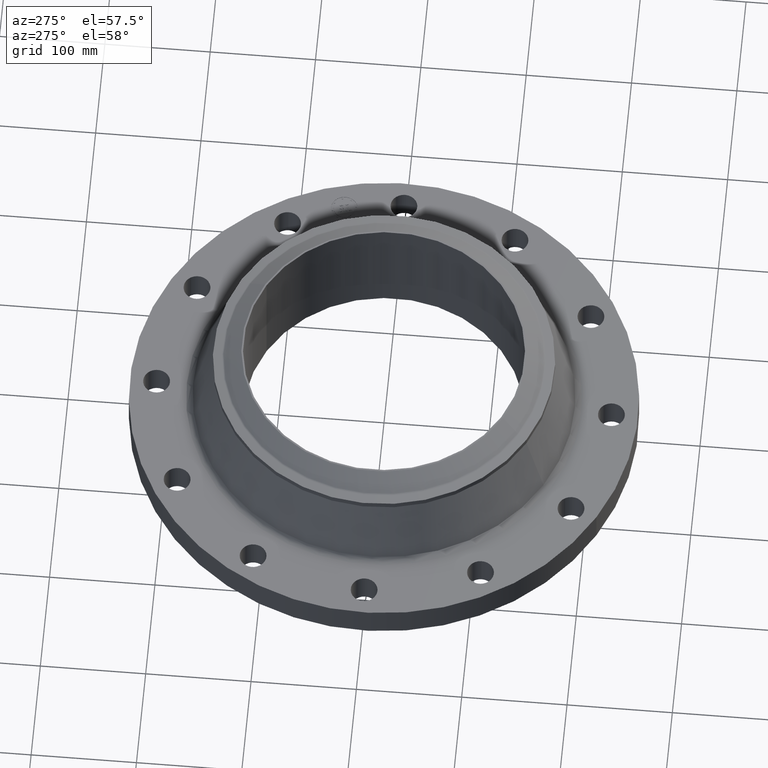
[diagram: clean part render]
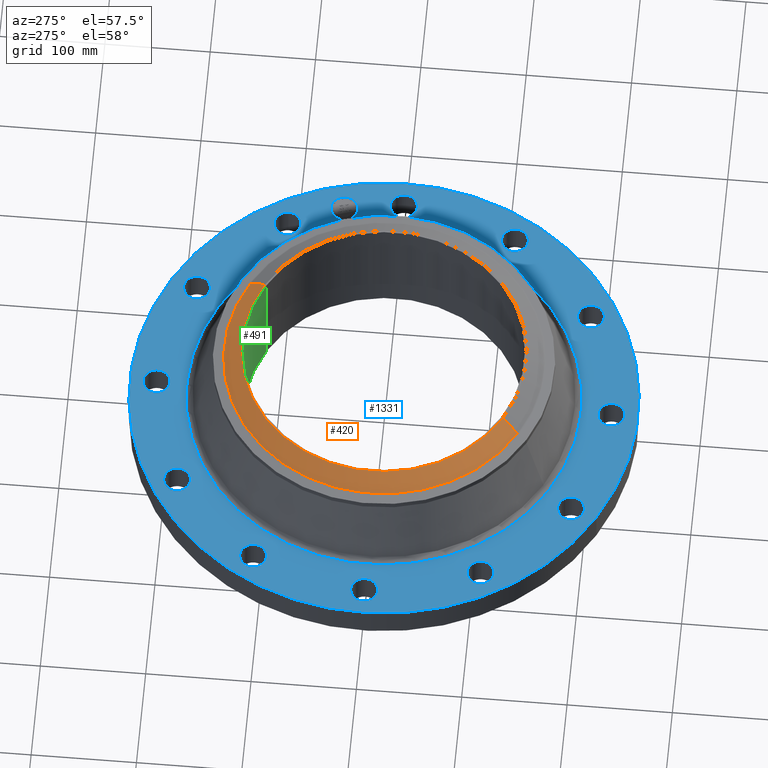
[diagram: same view with three faces highlighted in distinct colors, each labeled with its STEP entity id]
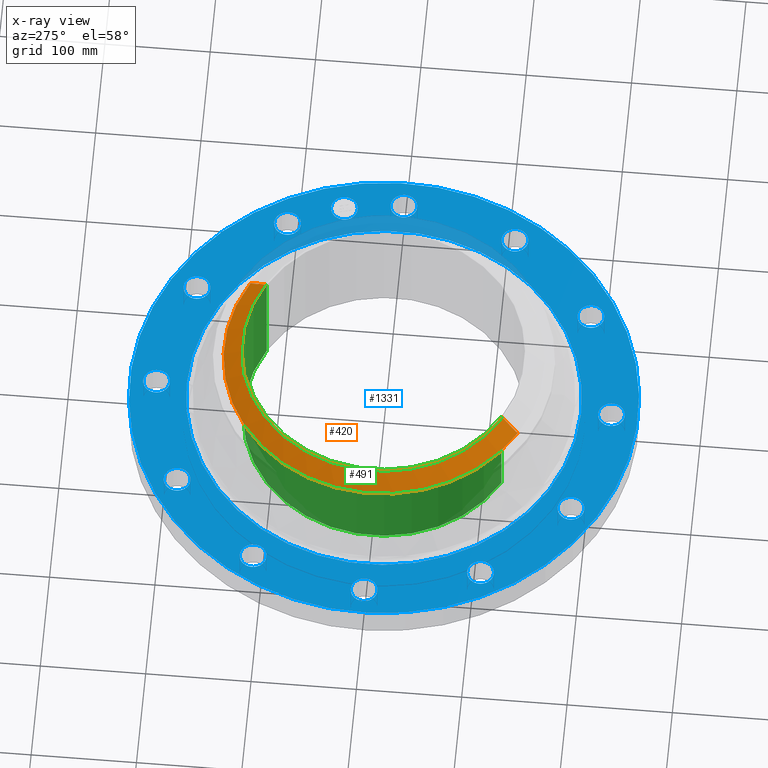
[diagram: x-ray of the same camera — body ghosted, the three highlighted faces saturated]
A machine part, auxiliary view with three faces highlighted in distinct colors.
The next image is the same camera in x-ray (body ghosted, the three faces saturated) — at least one of them is partly hidden behind the body in this view.
Their STEP definitions:

[orange] entity #420 — the highlighted conical surface has half-angle 52.5 deg.
#368=AXIS2_PLACEMENT_3D('Circle Axis2P3D',#366,#367,$) ;
#381=AXIS2_PLACEMENT_3D('Cone Axis2P3D',#378,#379,#380) ;
#411=AXIS2_PLACEMENT_3D('Circle Axis2P3D',#409,#410,$) ;
#344=CARTESIAN_POINT('Vertex',(-2.86491923219,-5.24419947822,3.99108306753)) ;
#351=CARTESIAN_POINT('Vertex',(2.86491923219,5.24419947822,3.99108306753)) ;
#366=CARTESIAN_POINT('Axis2P3D Location',(0.,0.,3.99108306753)) ;
#378=CARTESIAN_POINT('Axis2P3D Location',(0.,0.,4.50000000002)) ;
#383=CARTESIAN_POINT('Line Origine',(-2.70593370302,-4.95317841914,4.24554153377)) ;
#387=CARTESIAN_POINT('Vertex',(-2.54694817384,-4.66215736006,4.50000000002)) ;
#390=CARTESIAN_POINT('Line Origine',(2.70593370302,4.95317841914,4.24554153377)) ;
#394=CARTESIAN_POINT('Vertex',(2.54694817384,4.66215736006,4.50000000002)) ;
#409=CARTESIAN_POINT('Axis2P3D Location',(0.,0.,4.50000000002)) ;
#367=DIRECTION('Axis2P3D Direction',(0.,-0.,-0.0393700787402)) ;
#379=DIRECTION('Axis2P3D Direction',(-0.,-0.,-0.0393700787402)) ;
#380=DIRECTION('Axis2P3D XDirection',(-0.0188750212049,-0.0345504945626,0.)) ;
#384=DIRECTION('Vector Direction',(-0.014974561121,-0.02741075027,-0.023966985394)) ;
#391=DIRECTION('Vector Direction',(0.014974561121,0.02741075027,-0.023966985394)) ;
#410=DIRECTION('Axis2P3D Direction',(0.,-0.,-0.0393700787402)) ;
#385=VECTOR('Line Direction',#384,0.0393700787402) ;
#392=VECTOR('Line Direction',#391,0.0393700787402) ;
#415=ORIENTED_EDGE('',*,*,#396,.T.) ;
#416=ORIENTED_EDGE('',*,*,#370,.F.) ;
#417=ORIENTED_EDGE('',*,*,#389,.F.) ;
#418=ORIENTED_EDGE('',*,*,#413,.T.) ;
#420=ADVANCED_FACE('PartBody',(#419),#382,.T.) ;
#369=CIRCLE('generated circle',#368,5.97573345911) ;
#412=CIRCLE('generated circle',#411,5.31250000002) ;
#382=CONICAL_SURFACE('Cone',#381,5.31250000002,0.916297857297) ;
#370=EDGE_CURVE('',#345,#352,#369,.T.) ;
#389=EDGE_CURVE('',#388,#345,#386,.T.) ;
#396=EDGE_CURVE('',#395,#352,#393,.T.) ;
#413=EDGE_CURVE('',#388,#395,#412,.T.) ;
#414=EDGE_LOOP('',(#415,#416,#417,#418)) ;
#419=FACE_OUTER_BOUND('',#414,.T.) ;
#386=LINE('Line',#383,#385) ;
#393=LINE('Line',#390,#392) ;
#345=VERTEX_POINT('',#344) ;
#352=VERTEX_POINT('',#351) ;
#388=VERTEX_POINT('',#387) ;
#395=VERTEX_POINT('',#394) ;

[blue] entity #1331 — the highlighted planar face has unit normal (0, 0, -1).
#65=AXIS2_PLACEMENT_3D('Circle Axis2P3D',#63,#64,$) ;
#82=AXIS2_PLACEMENT_3D('Circle Axis2P3D',#80,#81,$) ;
#115=AXIS2_PLACEMENT_3D('Circle Axis2P3D',#113,#114,$) ;
#139=AXIS2_PLACEMENT_3D('Circle Axis2P3D',#137,#138,$) ;
#156=AXIS2_PLACEMENT_3D('Circle Axis2P3D',#154,#155,$) ;
#191=AXIS2_PLACEMENT_3D('Circle Axis2P3D',#189,#190,$) ;
#800=AXIS2_PLACEMENT_3D('Circle Axis2P3D',#798,#799,$) ;
#812=AXIS2_PLACEMENT_3D('Circle Axis2P3D',#810,#811,$) ;
#843=AXIS2_PLACEMENT_3D('Circle Axis2P3D',#841,#842,$) ;
#855=AXIS2_PLACEMENT_3D('Circle Axis2P3D',#853,#854,$) ;
#886=AXIS2_PLACEMENT_3D('Circle Axis2P3D',#884,#885,$) ;
#898=AXIS2_PLACEMENT_3D('Circle Axis2P3D',#896,#897,$) ;
#929=AXIS2_PLACEMENT_3D('Circle Axis2P3D',#927,#928,$) ;
#941=AXIS2_PLACEMENT_3D('Circle Axis2P3D',#939,#940,$) ;
#972=AXIS2_PLACEMENT_3D('Circle Axis2P3D',#970,#971,$) ;
#984=AXIS2_PLACEMENT_3D('Circle Axis2P3D',#982,#983,$) ;
#1015=AXIS2_PLACEMENT_3D('Circle Axis2P3D',#1013,#1014,$) ;
#1027=AXIS2_PLACEMENT_3D('Circle Axis2P3D',#1025,#1026,$) ;
#1058=AXIS2_PLACEMENT_3D('Circle Axis2P3D',#1056,#1057,$) ;
#1070=AXIS2_PLACEMENT_3D('Circle Axis2P3D',#1068,#1069,$) ;
#1101=AXIS2_PLACEMENT_3D('Circle Axis2P3D',#1099,#1100,$) ;
#1113=AXIS2_PLACEMENT_3D('Circle Axis2P3D',#1111,#1112,$) ;
#1144=AXIS2_PLACEMENT_3D('Circle Axis2P3D',#1142,#1143,$) ;
#1156=AXIS2_PLACEMENT_3D('Circle Axis2P3D',#1154,#1155,$) ;
#1187=AXIS2_PLACEMENT_3D('Circle Axis2P3D',#1185,#1186,$) ;
#1199=AXIS2_PLACEMENT_3D('Circle Axis2P3D',#1197,#1198,$) ;
#1230=AXIS2_PLACEMENT_3D('Circle Axis2P3D',#1228,#1229,$) ;
#1242=AXIS2_PLACEMENT_3D('Circle Axis2P3D',#1240,#1241,$) ;
#1255=AXIS2_PLACEMENT_3D('Plane Axis2P3D',#1252,#1253,#1254) ;
#1315=AXIS2_PLACEMENT_3D('Circle Axis2P3D',#1313,#1314,$) ;
#1324=AXIS2_PLACEMENT_3D('Circle Axis2P3D',#1322,#1323,$) ;
#46=CARTESIAN_POINT('Vertex',(8.06120871909,0.239712769303,1.25000000001)) ;
#60=CARTESIAN_POINT('Vertex',(8.93879128098,-0.239712769303,1.25000000001)) ;
#63=CARTESIAN_POINT('Axis2P3D Location',(8.50000000003,0.,1.25000000001)) ;
#80=CARTESIAN_POINT('Axis2P3D Location',(8.50000000003,0.,1.25000000001)) ;
#110=CARTESIAN_POINT('Vertex',(-4.55454261676,-8.33703433799,1.25000000001)) ;
#113=CARTESIAN_POINT('Axis2P3D Location',(0.,0.,1.25000000001)) ;
#117=CARTESIAN_POINT('Vertex',(4.55454261676,8.33703433799,1.25000000001)) ;
#137=CARTESIAN_POINT('Axis2P3D Location',(0.,0.,1.25000000001)) ;
#154=CARTESIAN_POINT('Axis2P3D Location',(0.,0.,1.25000000001)) ;
#158=CARTESIAN_POINT('Vertex',(3.53317696886,6.46743706013,1.25000000001)) ;
#160=CARTESIAN_POINT('Vertex',(-3.53317696886,-6.46743706013,1.25000000001)) ;
#189=CARTESIAN_POINT('Axis2P3D Location',(0.,0.,1.25000000001)) ;
#788=CARTESIAN_POINT('Vertex',(-7.10106792059,3.82300701172,1.25000000001)) ;
#795=CARTESIAN_POINT('Vertex',(-7.6213639438,4.67699298832,1.25000000001)) ;
#798=CARTESIAN_POINT('Axis2P3D Location',(-7.3612159322,4.25000000002,1.25000000001)) ;
#810=CARTESIAN_POINT('Axis2P3D Location',(-7.3612159322,4.25000000002,1.25000000001)) ;
#831=CARTESIAN_POINT('Vertex',(4.23820170737,-6.86135515129,1.25000000001)) ;
#838=CARTESIAN_POINT('Vertex',(4.26179829266,-7.86107671311,1.25000000001)) ;
#841=CARTESIAN_POINT('Axis2P3D Location',(4.25000000002,-7.3612159322,1.25000000001)) ;
#853=CARTESIAN_POINT('Axis2P3D Location',(4.25000000002,-7.3612159322,1.25000000001)) ;
#874=CARTESIAN_POINT('Vertex',(-4.23820170737,6.86135515129,1.25000000001)) ;
#881=CARTESIAN_POINT('Vertex',(-4.26179829266,7.86107671311,1.25000000001)) ;
#884=CARTESIAN_POINT('Axis2P3D Location',(-4.25000000002,7.3612159322,1.25000000001)) ;
#896=CARTESIAN_POINT('Axis2P3D Location',(-4.25000000002,7.3612159322,1.25000000001)) ;
#917=CARTESIAN_POINT('Vertex',(0.239712769303,-8.06120871909,1.25000000001)) ;
#924=CARTESIAN_POINT('Vertex',(-0.239712769303,-8.93879128098,1.25000000001)) ;
#927=CARTESIAN_POINT('Axis2P3D Location',(-5.98490048565E-016,-8.50000000003,1.25000000001)) ;
#939=CARTESIAN_POINT('Axis2P3D Location',(-5.98490048565E-016,-8.50000000003,1.25000000001)) ;
#960=CARTESIAN_POINT('Vertex',(-0.239712769303,8.06120871909,1.25000000001)) ;
#967=CARTESIAN_POINT('Vertex',(0.239712769303,8.93879128098,1.25000000001)) ;
#970=CARTESIAN_POINT('Axis2P3D Location',(-4.42459730714E-016,8.50000000003,1.25000000001)) ;
#982=CARTESIAN_POINT('Axis2P3D Location',(-4.42459730714E-016,8.50000000003,1.25000000001)) ;
#1003=CARTESIAN_POINT('Vertex',(-3.82300701172,-7.10106792059,1.25000000001)) ;
#1010=CARTESIAN_POINT('Vertex',(-4.67699298832,-7.6213639438,1.25000000001)) ;
#1013=CARTESIAN_POINT('Axis2P3D Location',(-4.25000000002,-7.3612159322,1.25000000001)) ;
#1025=CARTESIAN_POINT('Axis2P3D Location',(-4.25000000002,-7.3612159322,1.25000000001)) ;
#1046=CARTESIAN_POINT('Vertex',(3.82300701172,7.10106792059,1.25000000001)) ;
#1053=CARTESIAN_POINT('Vertex',(4.67699298832,7.6213639438,1.25000000001)) ;
#1056=CARTESIAN_POINT('Axis2P3D Location',(4.25000000002,7.3612159322,1.25000000001)) ;
#1068=CARTESIAN_POINT('Axis2P3D Location',(4.25000000002,7.3612159322,1.25000000001)) ;
#1089=CARTESIAN_POINT('Vertex',(-6.86135515129,-4.23820170737,1.25000000001)) ;
#1096=CARTESIAN_POINT('Vertex',(-7.86107671311,-4.26179829266,1.25000000001)) ;
#1099=CARTESIAN_POINT('Axis2P3D Location',(-7.3612159322,-4.25000000002,1.25000000001)) ;
#1111=CARTESIAN_POINT('Axis2P3D Location',(-7.3612159322,-4.25000000002,1.25000000001)) ;
#1132=CARTESIAN_POINT('Vertex',(6.86135515129,4.23820170737,1.25000000001)) ;
#1139=CARTESIAN_POINT('Vertex',(7.86107671311,4.26179829266,1.25000000001)) ;
#1142=CARTESIAN_POINT('Axis2P3D Location',(7.3612159322,4.25000000002,1.25000000001)) ;
#1154=CARTESIAN_POINT('Axis2P3D Location',(7.3612159322,4.25000000002,1.25000000001)) ;
#1175=CARTESIAN_POINT('Vertex',(-8.06120871909,-0.239712769303,1.25000000001)) ;
#1182=CARTESIAN_POINT('Vertex',(-8.93879128098,0.239712769303,1.25000000001)) ;
#1185=CARTESIAN_POINT('Axis2P3D Location',(-8.50000000003,-1.04094977928E-015,1.25000000001)) ;
#1197=CARTESIAN_POINT('Axis2P3D Location',(-8.50000000003,-1.04094977928E-015,1.25000000001)) ;
#1218=CARTESIAN_POINT('Vertex',(7.10106792059,-3.82300701172,1.25000000001)) ;
#1225=CARTESIAN_POINT('Vertex',(7.6213639438,-4.67699298832,1.25000000001)) ;
#1228=CARTESIAN_POINT('Axis2P3D Location',(7.3612159322,-4.25000000002,1.25000000001)) ;
#1240=CARTESIAN_POINT('Axis2P3D Location',(7.3612159322,-4.25000000002,1.25000000001)) ;
#1252=CARTESIAN_POINT('Axis2P3D Location',(0.,9.50000000004,1.25000000001)) ;
#1313=CARTESIAN_POINT('Axis2P3D Location',(8.21036952349,2.19996188338,1.25000000001)) ;
#1317=CARTESIAN_POINT('Vertex',(8.08096029755,2.68292368957,1.25000000001)) ;
#1319=CARTESIAN_POINT('Vertex',(8.33977874943,1.71700007719,1.25000000001)) ;
#1322=CARTESIAN_POINT('Axis2P3D Location',(8.21036952349,2.19996188338,1.25000000001)) ;
#64=DIRECTION('Axis2P3D Direction',(0.,-0.,-0.0393700787402)) ;
#81=DIRECTION('Axis2P3D Direction',(0.,-0.,-0.0393700787402)) ;
#114=DIRECTION('Axis2P3D Direction',(0.,0.,-0.0393700787402)) ;
#138=DIRECTION('Axis2P3D Direction',(0.,0.,-0.0393700787402)) ;
#155=DIRECTION('Axis2P3D Direction',(0.,0.,-0.0393700787402)) ;
#190=DIRECTION('Axis2P3D Direction',(0.,0.,-0.0393700787402)) ;
#799=DIRECTION('Axis2P3D Direction',(0.,0.,-0.0393700787402)) ;
#811=DIRECTION('Axis2P3D Direction',(0.,0.,-0.0393700787402)) ;
#842=DIRECTION('Axis2P3D Direction',(0.,-0.,-0.0393700787402)) ;
#854=DIRECTION('Axis2P3D Direction',(0.,-0.,-0.0393700787402)) ;
#885=DIRECTION('Axis2P3D Direction',(0.,0.,-0.0393700787402)) ;
#897=DIRECTION('Axis2P3D Direction',(0.,0.,-0.0393700787402)) ;
#928=DIRECTION('Axis2P3D Direction',(0.,-0.,-0.0393700787402)) ;
#940=DIRECTION('Axis2P3D Direction',(0.,-0.,-0.0393700787402)) ;
#971=DIRECTION('Axis2P3D Direction',(0.,0.,-0.0393700787402)) ;
#983=DIRECTION('Axis2P3D Direction',(0.,0.,-0.0393700787402)) ;
#1014=DIRECTION('Axis2P3D Direction',(-0.,0.,-0.0393700787402)) ;
#1026=DIRECTION('Axis2P3D Direction',(-0.,0.,-0.0393700787402)) ;
#1057=DIRECTION('Axis2P3D Direction',(0.,0.,-0.0393700787402)) ;
#1069=DIRECTION('Axis2P3D Direction',(0.,0.,-0.0393700787402)) ;
#1100=DIRECTION('Axis2P3D Direction',(-0.,0.,-0.0393700787402)) ;
#1112=DIRECTION('Axis2P3D Direction',(-0.,0.,-0.0393700787402)) ;
#1143=DIRECTION('Axis2P3D Direction',(0.,0.,-0.0393700787402)) ;
#1155=DIRECTION('Axis2P3D Direction',(0.,0.,-0.0393700787402)) ;
#1186=DIRECTION('Axis2P3D Direction',(-0.,0.,-0.0393700787402)) ;
#1198=DIRECTION('Axis2P3D Direction',(-0.,0.,-0.0393700787402)) ;
#1229=DIRECTION('Axis2P3D Direction',(0.,-0.,-0.0393700787402)) ;
#1241=DIRECTION('Axis2P3D Direction',(0.,-0.,-0.0393700787402)) ;
#1253=DIRECTION('Axis2P3D Direction',(0.,0.,-0.0393700787402)) ;
#1254=DIRECTION('Axis2P3D XDirection',(0.0393700787402,0.,0.)) ;
#1314=DIRECTION('Axis2P3D Direction',(0.,0.,-0.0393700787402)) ;
#1323=DIRECTION('Axis2P3D Direction',(0.,0.,-0.0393700787402)) ;
#1258=ORIENTED_EDGE('',*,*,#141,.F.) ;
#1259=ORIENTED_EDGE('',*,*,#119,.F.) ;
#1262=ORIENTED_EDGE('',*,*,#67,.T.) ;
#1263=ORIENTED_EDGE('',*,*,#84,.T.) ;
#1266=ORIENTED_EDGE('',*,*,#193,.T.) ;
#1267=ORIENTED_EDGE('',*,*,#162,.T.) ;
#1270=ORIENTED_EDGE('',*,*,#1244,.T.) ;
#1271=ORIENTED_EDGE('',*,*,#1232,.T.) ;
#1274=ORIENTED_EDGE('',*,*,#857,.T.) ;
#1275=ORIENTED_EDGE('',*,*,#845,.T.) ;
#1278=ORIENTED_EDGE('',*,*,#943,.T.) ;
#1279=ORIENTED_EDGE('',*,*,#931,.T.) ;
#1282=ORIENTED_EDGE('',*,*,#1029,.T.) ;
#1283=ORIENTED_EDGE('',*,*,#1017,.T.) ;
#1286=ORIENTED_EDGE('',*,*,#1115,.T.) ;
#1287=ORIENTED_EDGE('',*,*,#1103,.T.) ;
#1290=ORIENTED_EDGE('',*,*,#1201,.T.) ;
#1291=ORIENTED_EDGE('',*,*,#1189,.T.) ;
#1294=ORIENTED_EDGE('',*,*,#814,.T.) ;
#1295=ORIENTED_EDGE('',*,*,#802,.T.) ;
#1298=ORIENTED_EDGE('',*,*,#900,.T.) ;
#1299=ORIENTED_EDGE('',*,*,#888,.T.) ;
#1302=ORIENTED_EDGE('',*,*,#986,.T.) ;
#1303=ORIENTED_EDGE('',*,*,#974,.T.) ;
#1306=ORIENTED_EDGE('',*,*,#1072,.T.) ;
#1307=ORIENTED_EDGE('',*,*,#1060,.T.) ;
#1310=ORIENTED_EDGE('',*,*,#1158,.T.) ;
#1311=ORIENTED_EDGE('',*,*,#1146,.T.) ;
#1328=ORIENTED_EDGE('',*,*,#1321,.T.) ;
#1329=ORIENTED_EDGE('',*,*,#1326,.T.) ;
#1264=FACE_BOUND('',#1261,.T.) ;
#1268=FACE_BOUND('',#1265,.T.) ;
#1272=FACE_BOUND('',#1269,.T.) ;
#1276=FACE_BOUND('',#1273,.T.) ;
#1280=FACE_BOUND('',#1277,.T.) ;
#1284=FACE_BOUND('',#1281,.T.) ;
#1288=FACE_BOUND('',#1285,.T.) ;
#1292=FACE_BOUND('',#1289,.T.) ;
#1296=FACE_BOUND('',#1293,.T.) ;
#1300=FACE_BOUND('',#1297,.T.) ;
#1304=FACE_BOUND('',#1301,.T.) ;
#1308=FACE_BOUND('',#1305,.T.) ;
#1312=FACE_BOUND('',#1309,.T.) ;
#1330=FACE_BOUND('',#1327,.T.) ;
#1331=ADVANCED_FACE('PartBody',(#1260,#1264,#1268,#1272,#1276,#1280,#1284,#1288,#1292,#1296,#1300,#1304,#1308,#1312,#1330),#1256,.F.) ;
#66=CIRCLE('generated circle',#65,0.500000000002) ;
#83=CIRCLE('generated circle',#82,0.500000000002) ;
#116=CIRCLE('generated circle',#115,9.50000000004) ;
#140=CIRCLE('generated circle',#139,9.50000000004) ;
#157=CIRCLE('generated circle',#156,7.36960525538) ;
#192=CIRCLE('generated circle',#191,7.36960525538) ;
#801=CIRCLE('generated circle',#800,0.500000000002) ;
#813=CIRCLE('generated circle',#812,0.500000000002) ;
#844=CIRCLE('generated circle',#843,0.500000000002) ;
#856=CIRCLE('generated circle',#855,0.500000000002) ;
#887=CIRCLE('generated circle',#886,0.500000000002) ;
#899=CIRCLE('generated circle',#898,0.500000000002) ;
#930=CIRCLE('generated circle',#929,0.500000000002) ;
#942=CIRCLE('generated circle',#941,0.500000000002) ;
#973=CIRCLE('generated circle',#972,0.500000000002) ;
#985=CIRCLE('generated circle',#984,0.500000000002) ;
#1016=CIRCLE('generated circle',#1015,0.500000000002) ;
#1028=CIRCLE('generated circle',#1027,0.500000000002) ;
#1059=CIRCLE('generated circle',#1058,0.500000000002) ;
#1071=CIRCLE('generated circle',#1070,0.500000000002) ;
#1102=CIRCLE('generated circle',#1101,0.500000000002) ;
#1114=CIRCLE('generated circle',#1113,0.500000000002) ;
#1145=CIRCLE('generated circle',#1144,0.500000000002) ;
#1157=CIRCLE('generated circle',#1156,0.500000000002) ;
#1188=CIRCLE('generated circle',#1187,0.500000000002) ;
#1200=CIRCLE('generated circle',#1199,0.500000000002) ;
#1231=CIRCLE('generated circle',#1230,0.500000000002) ;
#1243=CIRCLE('generated circle',#1242,0.500000000002) ;
#1316=CIRCLE('generated circle',#1315,0.499998853999) ;
#1325=CIRCLE('generated circle',#1324,0.499998853999) ;
#67=EDGE_CURVE('',#47,#61,#66,.T.) ;
#84=EDGE_CURVE('',#61,#47,#83,.T.) ;
#119=EDGE_CURVE('',#111,#118,#116,.T.) ;
#141=EDGE_CURVE('',#118,#111,#140,.T.) ;
#162=EDGE_CURVE('',#159,#161,#157,.T.) ;
#193=EDGE_CURVE('',#161,#159,#192,.T.) ;
#802=EDGE_CURVE('',#789,#796,#801,.T.) ;
#814=EDGE_CURVE('',#796,#789,#813,.T.) ;
#845=EDGE_CURVE('',#832,#839,#844,.T.) ;
#857=EDGE_CURVE('',#839,#832,#856,.T.) ;
#888=EDGE_CURVE('',#875,#882,#887,.T.) ;
#900=EDGE_CURVE('',#882,#875,#899,.T.) ;
#931=EDGE_CURVE('',#918,#925,#930,.T.) ;
#943=EDGE_CURVE('',#925,#918,#942,.T.) ;
#974=EDGE_CURVE('',#961,#968,#973,.T.) ;
#986=EDGE_CURVE('',#968,#961,#985,.T.) ;
#1017=EDGE_CURVE('',#1004,#1011,#1016,.T.) ;
#1029=EDGE_CURVE('',#1011,#1004,#1028,.T.) ;
#1060=EDGE_CURVE('',#1047,#1054,#1059,.T.) ;
#1072=EDGE_CURVE('',#1054,#1047,#1071,.T.) ;
#1103=EDGE_CURVE('',#1090,#1097,#1102,.T.) ;
#1115=EDGE_CURVE('',#1097,#1090,#1114,.T.) ;
#1146=EDGE_CURVE('',#1133,#1140,#1145,.T.) ;
#1158=EDGE_CURVE('',#1140,#1133,#1157,.T.) ;
#1189=EDGE_CURVE('',#1176,#1183,#1188,.T.) ;
#1201=EDGE_CURVE('',#1183,#1176,#1200,.T.) ;
#1232=EDGE_CURVE('',#1219,#1226,#1231,.T.) ;
#1244=EDGE_CURVE('',#1226,#1219,#1243,.T.) ;
#1321=EDGE_CURVE('',#1318,#1320,#1316,.T.) ;
#1326=EDGE_CURVE('',#1320,#1318,#1325,.T.) ;
#1257=EDGE_LOOP('',(#1258,#1259)) ;
#1261=EDGE_LOOP('',(#1262,#1263)) ;
#1265=EDGE_LOOP('',(#1266,#1267)) ;
#1269=EDGE_LOOP('',(#1270,#1271)) ;
#1273=EDGE_LOOP('',(#1274,#1275)) ;
#1277=EDGE_LOOP('',(#1278,#1279)) ;
#1281=EDGE_LOOP('',(#1282,#1283)) ;
#1285=EDGE_LOOP('',(#1286,#1287)) ;
#1289=EDGE_LOOP('',(#1290,#1291)) ;
#1293=EDGE_LOOP('',(#1294,#1295)) ;
#1297=EDGE_LOOP('',(#1298,#1299)) ;
#1301=EDGE_LOOP('',(#1302,#1303)) ;
#1305=EDGE_LOOP('',(#1306,#1307)) ;
#1309=EDGE_LOOP('',(#1310,#1311)) ;
#1327=EDGE_LOOP('',(#1328,#1329)) ;
#1260=FACE_OUTER_BOUND('',#1257,.T.) ;
#1256=PLANE('',#1255) ;
#47=VERTEX_POINT('',#46) ;
#61=VERTEX_POINT('',#60) ;
#111=VERTEX_POINT('',#110) ;
#118=VERTEX_POINT('',#117) ;
#159=VERTEX_POINT('',#158) ;
#161=VERTEX_POINT('',#160) ;
#789=VERTEX_POINT('',#788) ;
#796=VERTEX_POINT('',#795) ;
#832=VERTEX_POINT('',#831) ;
#839=VERTEX_POINT('',#838) ;
#875=VERTEX_POINT('',#874) ;
#882=VERTEX_POINT('',#881) ;
#918=VERTEX_POINT('',#917) ;
#925=VERTEX_POINT('',#924) ;
#961=VERTEX_POINT('',#960) ;
#968=VERTEX_POINT('',#967) ;
#1004=VERTEX_POINT('',#1003) ;
#1011=VERTEX_POINT('',#1010) ;
#1047=VERTEX_POINT('',#1046) ;
#1054=VERTEX_POINT('',#1053) ;
#1090=VERTEX_POINT('',#1089) ;
#1097=VERTEX_POINT('',#1096) ;
#1133=VERTEX_POINT('',#1132) ;
#1140=VERTEX_POINT('',#1139) ;
#1176=VERTEX_POINT('',#1175) ;
#1183=VERTEX_POINT('',#1182) ;
#1219=VERTEX_POINT('',#1218) ;
#1226=VERTEX_POINT('',#1225) ;
#1318=VERTEX_POINT('',#1317) ;
#1320=VERTEX_POINT('',#1319) ;

[green] entity #491 — the highlighted cylindrical surface (partial cylindrical patch) has radius 133.35 mm, axis along (0, 0, -1).
#432=AXIS2_PLACEMENT_3D('Circle Axis2P3D',#430,#431,$) ;
#452=AXIS2_PLACEMENT_3D('Cylinder Axis2P3D',#449,#450,#451) ;
#482=AXIS2_PLACEMENT_3D('Circle Axis2P3D',#480,#481,$) ;
#430=CARTESIAN_POINT('Axis2P3D Location',(0.,0.,4.50000000002)) ;
#434=CARTESIAN_POINT('Vertex',(-2.51698407768,-4.60730844994,4.50000000002)) ;
#436=CARTESIAN_POINT('Vertex',(2.51698407768,4.60730844994,4.50000000002)) ;
#449=CARTESIAN_POINT('Axis2P3D Location',(0.,0.,2.26850000001)) ;
#454=CARTESIAN_POINT('Line Origine',(2.51698407768,4.60730844994,2.21850000001)) ;
#458=CARTESIAN_POINT('Vertex',(2.51698407768,4.60730844994,-0.0630000000003)) ;
#465=CARTESIAN_POINT('Vertex',(-2.51698407768,-4.60730844994,-0.0630000000003)) ;
#468=CARTESIAN_POINT('Line Origine',(-2.51698407768,-4.60730844994,2.21850000001)) ;
#480=CARTESIAN_POINT('Axis2P3D Location',(0.,0.,-0.0630000000003)) ;
#431=DIRECTION('Axis2P3D Direction',(0.,-0.,-0.0393700787402)) ;
#450=DIRECTION('Axis2P3D Direction',(0.,0.,-0.0393700787402)) ;
#451=DIRECTION('Axis2P3D XDirection',(-0.0188750212049,-0.0345504945626,0.)) ;
#455=DIRECTION('Vector Direction',(0.,0.,-0.0393700787402)) ;
#469=DIRECTION('Vector Direction',(0.,0.,-0.0393700787402)) ;
#481=DIRECTION('Axis2P3D Direction',(0.,0.,-0.0393700787402)) ;
#456=VECTOR('Line Direction',#455,0.0393700787402) ;
#470=VECTOR('Line Direction',#469,0.0393700787402) ;
#486=ORIENTED_EDGE('',*,*,#472,.T.) ;
#487=ORIENTED_EDGE('',*,*,#484,.T.) ;
#488=ORIENTED_EDGE('',*,*,#460,.F.) ;
#489=ORIENTED_EDGE('',*,*,#438,.F.) ;
#491=ADVANCED_FACE('PartBody',(#490),#453,.F.) ;
#433=CIRCLE('generated circle',#432,5.25000000002) ;
#483=CIRCLE('generated circle',#482,5.25000000002) ;
#453=CYLINDRICAL_SURFACE('generated cylinder',#452,5.25000000002) ;
#438=EDGE_CURVE('',#435,#437,#433,.T.) ;
#460=EDGE_CURVE('',#437,#459,#457,.T.) ;
#472=EDGE_CURVE('',#435,#466,#471,.T.) ;
#484=EDGE_CURVE('',#466,#459,#483,.T.) ;
#485=EDGE_LOOP('',(#486,#487,#488,#489)) ;
#490=FACE_OUTER_BOUND('',#485,.T.) ;
#457=LINE('Line',#454,#456) ;
#471=LINE('Line',#468,#470) ;
#435=VERTEX_POINT('',#434) ;
#437=VERTEX_POINT('',#436) ;
#459=VERTEX_POINT('',#458) ;
#466=VERTEX_POINT('',#465) ;